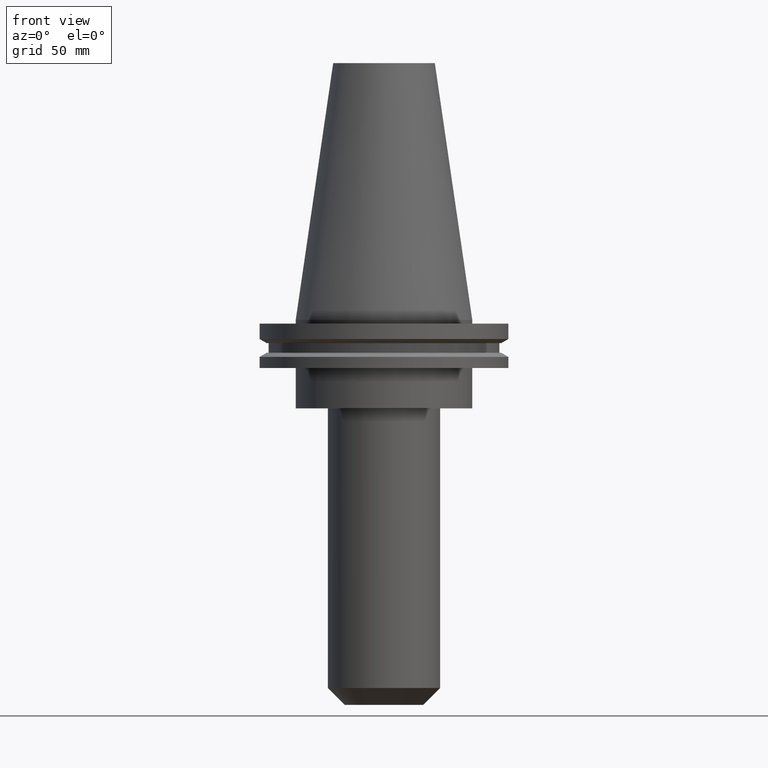
[diagram: clean part render]
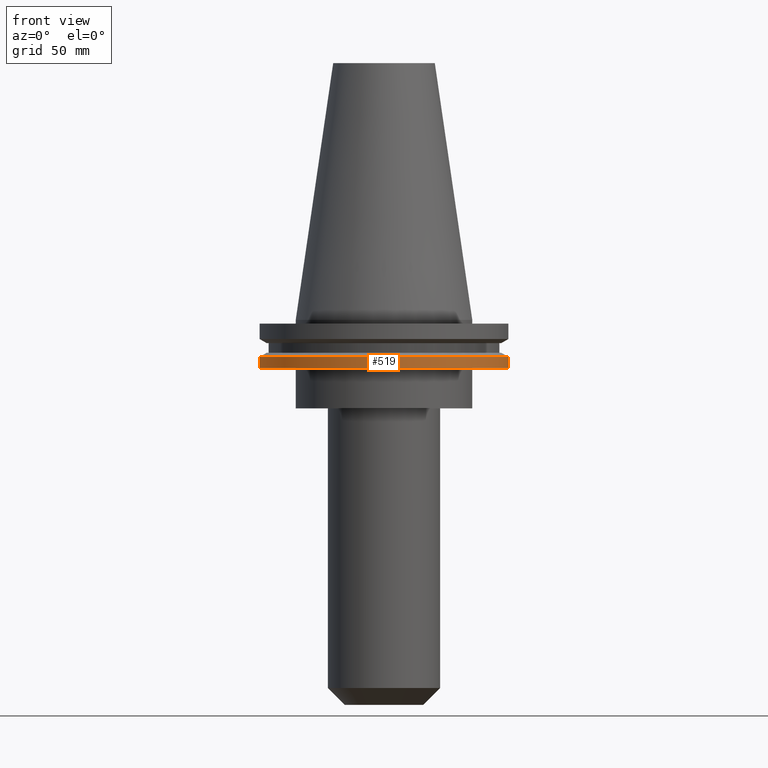
[diagram: same view with one face highlighted and labeled with its STEP entity id]
A machine part, front view. The second image highlights one B-rep face of the part: STEP entity #519.
In plain terms, the highlighted cylindrical surface (partial cylindrical patch) has radius 49.215 mm, axis along (-0, -0, 1).
Its self-contained STEP definition (entity closure, byte-faithful):
#8 = DIRECTION ( 'NONE',  ( -0.000000000000000000, -0.000000000000000000, 1.000000000000000000 ) ) ;
#18 = ORIENTED_EDGE ( 'NONE', *, *, #34, .F. ) ;
#21 = VERTEX_POINT ( 'NONE', #142 ) ;
#34 = EDGE_CURVE ( 'NONE', #21, #340, #405, .T. ) ;
#102 = EDGE_CURVE ( 'NONE', #21, #710, #347, .T. ) ;
#142 = CARTESIAN_POINT ( 'NONE',  ( -49.21499999999998920, 6.027099222003697037E-15, -19.04999999999999716 ) ) ;
#187 = DIRECTION ( 'NONE',  ( 1.000000000000000000, 0.000000000000000000, 0.000000000000000000 ) ) ;
#196 = DIRECTION ( 'NONE',  ( 1.000000000000000000, 0.000000000000000000, 0.000000000000000000 ) ) ;
#215 = AXIS2_PLACEMENT_3D ( 'NONE', #584, #530, #187 ) ;
#242 = VECTOR ( 'NONE', #713, 1000.000000000000000 ) ;
#266 = AXIS2_PLACEMENT_3D ( 'NONE', #557, #407, #742 ) ;
#340 = VERTEX_POINT ( 'NONE', #581 ) ;
#347 = CIRCLE ( 'NONE', #509, 49.21499999999998920 ) ;
#357 = CARTESIAN_POINT ( 'NONE',  ( 49.21499999999998920, 0.000000000000000000, -14.65761014474876944 ) ) ;
#366 = VERTEX_POINT ( 'NONE', #357 ) ;
#395 = CARTESIAN_POINT ( 'NONE',  ( 0.000000000000000000, 0.000000000000000000, -19.04999999999999716 ) ) ;
#404 = CARTESIAN_POINT ( 'NONE',  ( 49.21499999999998920, 0.000000000000000000, -19.04999999999999716 ) ) ;
#405 = LINE ( 'NONE', #524, #480 ) ;
#407 = DIRECTION ( 'NONE',  ( -0.000000000000000000, -0.000000000000000000, 1.000000000000000000 ) ) ;
#452 = CYLINDRICAL_SURFACE ( 'NONE', #215, 49.21499999999998920 ) ;
#480 = VECTOR ( 'NONE', #8, 1000.000000000000000 ) ;
#484 = ORIENTED_EDGE ( 'NONE', *, *, #102, .T. ) ;
#509 = AXIS2_PLACEMENT_3D ( 'NONE', #395, #599, #196 ) ;
#519 = ADVANCED_FACE ( 'NONE', ( #788 ), #452, .T. ) ;
#524 = CARTESIAN_POINT ( 'NONE',  ( -49.21499999999998920, 6.027099222003697037E-15, 101.5999999999999943 ) ) ;
#530 = DIRECTION ( 'NONE',  ( -0.000000000000000000, -0.000000000000000000, 1.000000000000000000 ) ) ;
#555 = CIRCLE ( 'NONE', #266, 49.21499999999998920 ) ;
#557 = CARTESIAN_POINT ( 'NONE',  ( 0.000000000000000000, 0.000000000000000000, -14.65761014474876944 ) ) ;
#581 = CARTESIAN_POINT ( 'NONE',  ( -49.21499999999998920, 6.027099222003697037E-15, -14.65761014474876944 ) ) ;
#584 = CARTESIAN_POINT ( 'NONE',  ( 0.000000000000000000, 0.000000000000000000, 101.5999999999999943 ) ) ;
#585 = ORIENTED_EDGE ( 'NONE', *, *, #803, .T. ) ;
#599 = DIRECTION ( 'NONE',  ( -0.000000000000000000, -0.000000000000000000, 1.000000000000000000 ) ) ;
#666 = LINE ( 'NONE', #854, #242 ) ;
#701 = EDGE_LOOP ( 'NONE', ( #18, #484, #585, #819 ) ) ;
#710 = VERTEX_POINT ( 'NONE', #404 ) ;
#711 = EDGE_CURVE ( 'NONE', #340, #366, #555, .T. ) ;
#713 = DIRECTION ( 'NONE',  ( -0.000000000000000000, -0.000000000000000000, 1.000000000000000000 ) ) ;
#742 = DIRECTION ( 'NONE',  ( 1.000000000000000000, 0.000000000000000000, 0.000000000000000000 ) ) ;
#788 = FACE_OUTER_BOUND ( 'NONE', #701, .T. ) ;
#803 = EDGE_CURVE ( 'NONE', #710, #366, #666, .T. ) ;
#819 = ORIENTED_EDGE ( 'NONE', *, *, #711, .F. ) ;
#854 = CARTESIAN_POINT ( 'NONE',  ( 49.21499999999998920, 0.000000000000000000, 101.5999999999999943 ) ) ;